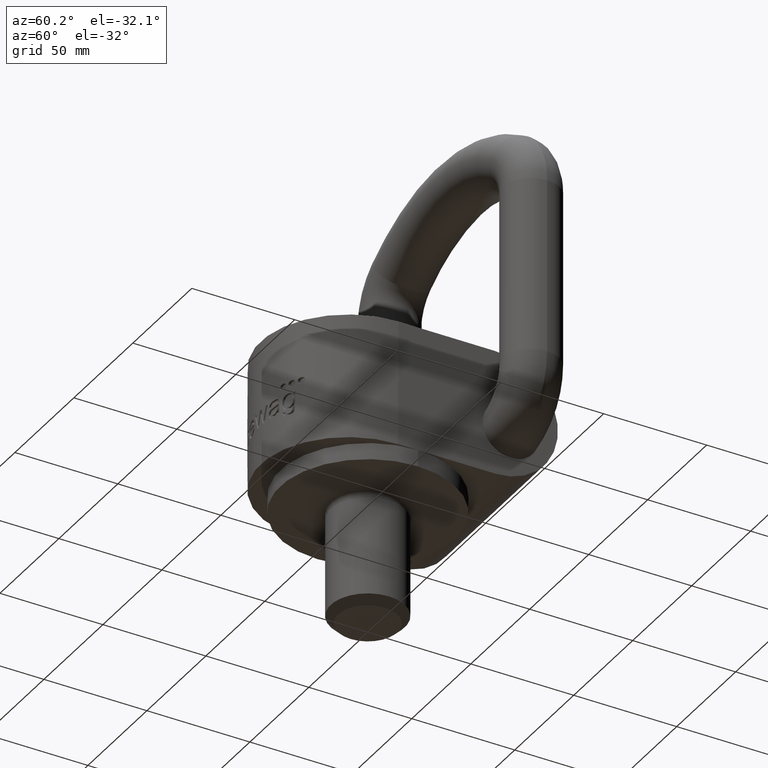
[diagram: clean part render]
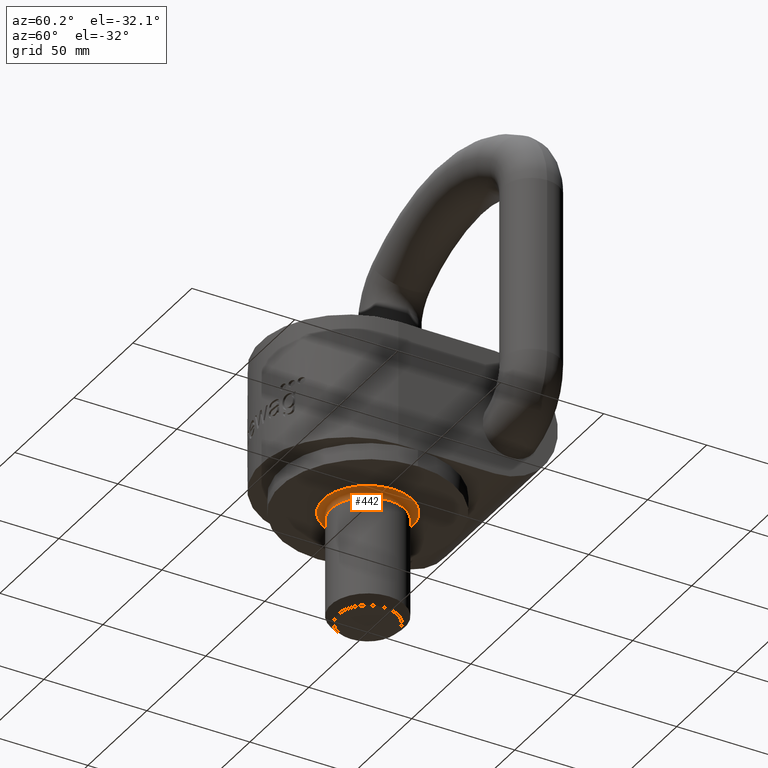
[diagram: same view with one face highlighted and labeled with its STEP entity id]
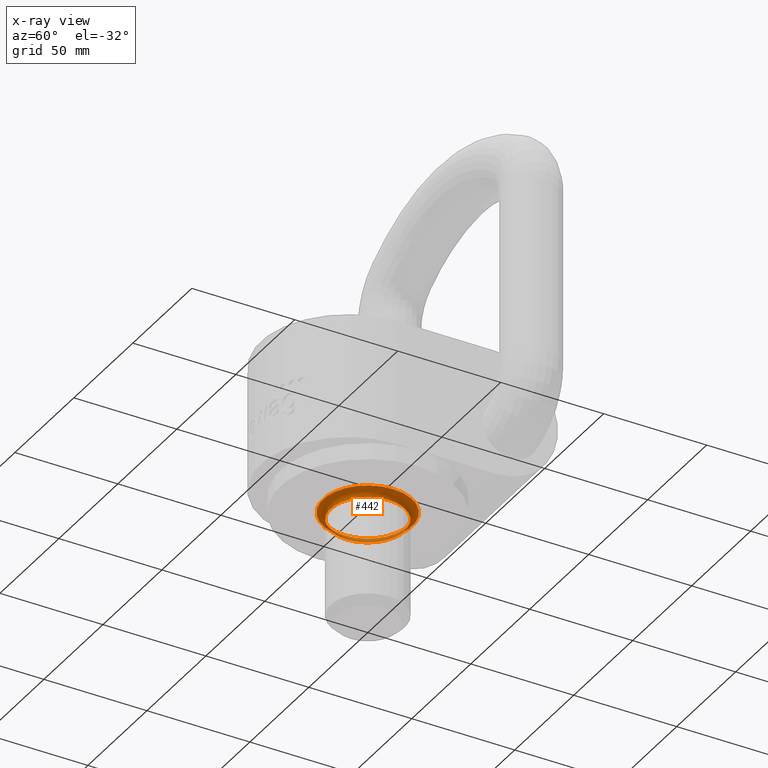
[diagram: x-ray of the same camera — body ghosted, the highlighted face saturated]
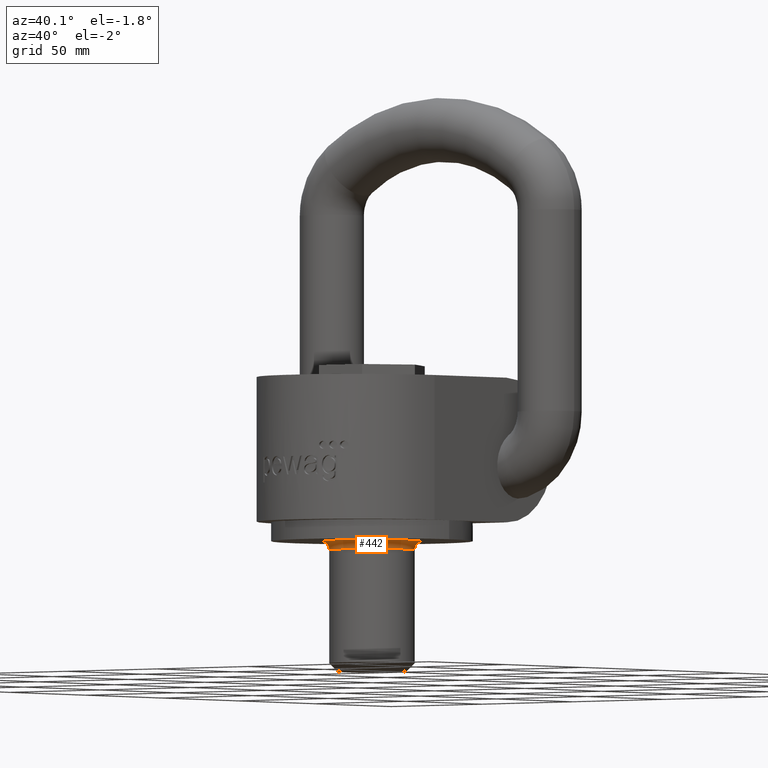
[diagram: same view with one face highlighted and labeled with its STEP entity id]
A machine part, auxiliary view. The second image highlights one B-rep face of the part: STEP entity #442.
The next image is the same camera in x-ray: the body ghosted, the highlighted face saturated — about 11% of this face is hidden behind the body in this view.
A second angle (auxiliary view) of the same face is appended — the face is thin or edge-on in the first view.
In plain terms, the highlighted toroidal blend (fillet) surface has major radius 21.6 mm and minor (blend) radius 3.6 mm.
Its self-contained STEP definition (entity closure, byte-faithful):
#238=TOROIDAL_SURFACE('',#2534,21.6,3.6);
#442=ADVANCED_FACE('',(#599,#600),#238,.F.);
#599=FACE_BOUND('',#677,.T.);
#600=FACE_BOUND('',#678,.T.);
#677=EDGE_LOOP('',(#1332));
#678=EDGE_LOOP('',(#1333));
#1128=CIRCLE('',#2526,21.6);
#1130=CIRCLE('',#2530,18.);
#1332=ORIENTED_EDGE('',*,*,#2104,.F.);
#1333=ORIENTED_EDGE('',*,*,#2106,.F.);
#1871=VERTEX_POINT('',#3875);
#1873=VERTEX_POINT('',#3881);
#2104=EDGE_CURVE('',#1871,#1871,#1128,.T.);
#2106=EDGE_CURVE('',#1873,#1873,#1130,.T.);
#2526=AXIS2_PLACEMENT_3D('',#3874,#2783,#2784);
#2530=AXIS2_PLACEMENT_3D('',#3880,#2791,#2792);
#2534=AXIS2_PLACEMENT_3D('',#3886,#2799,#2800);
#2783=DIRECTION('',(0.,0.,1.));
#2784=DIRECTION('',(-1.,0.,0.));
#2791=DIRECTION('',(0.,0.,-1.));
#2792=DIRECTION('',(-1.,0.,0.));
#2799=DIRECTION('',(0.,0.,-1.));
#2800=DIRECTION('',(-1.,0.,0.));
#3874=CARTESIAN_POINT('',(0.,0.,-7.99999999999993));
#3875=CARTESIAN_POINT('',(-21.6,0.,-7.99999999999993));
#3880=CARTESIAN_POINT('',(0.,0.,-11.5999999999999));
#3881=CARTESIAN_POINT('',(-18.,0.,-11.5999999999999));
#3886=CARTESIAN_POINT('',(0.,0.,-11.5999999999999));